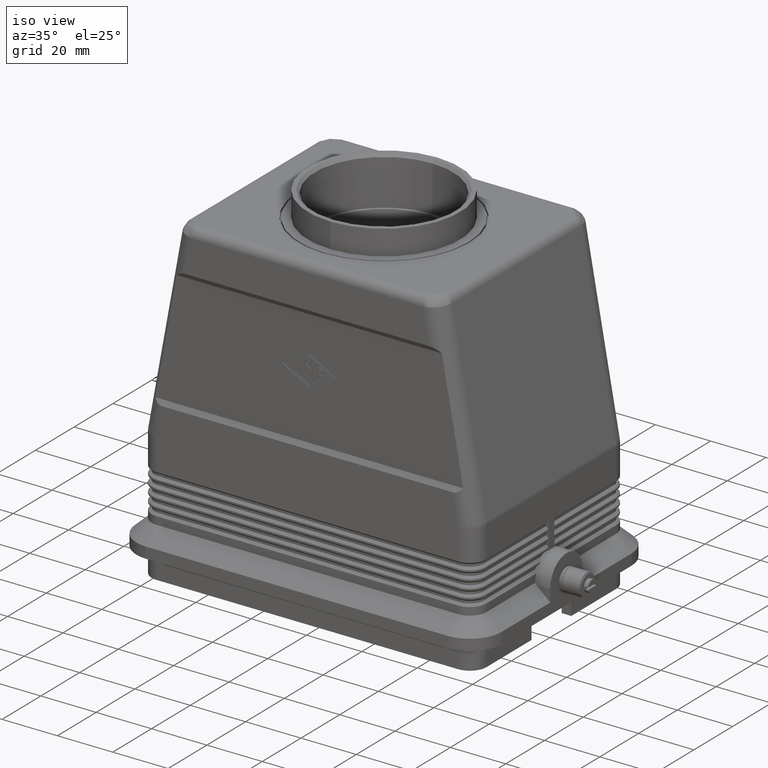
[diagram: clean part render]
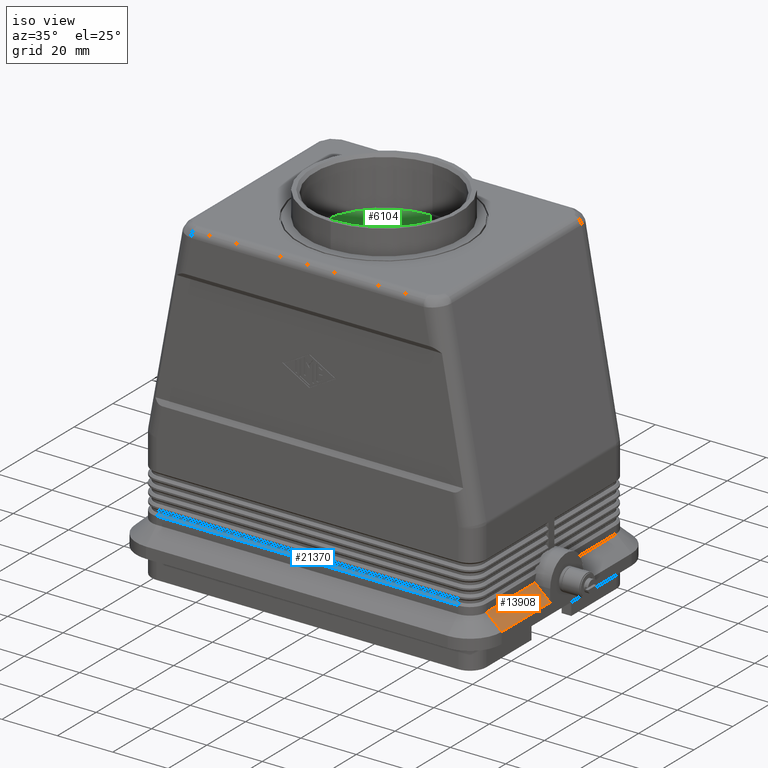
[diagram: same view with three faces highlighted in distinct colors, each labeled with its STEP entity id]
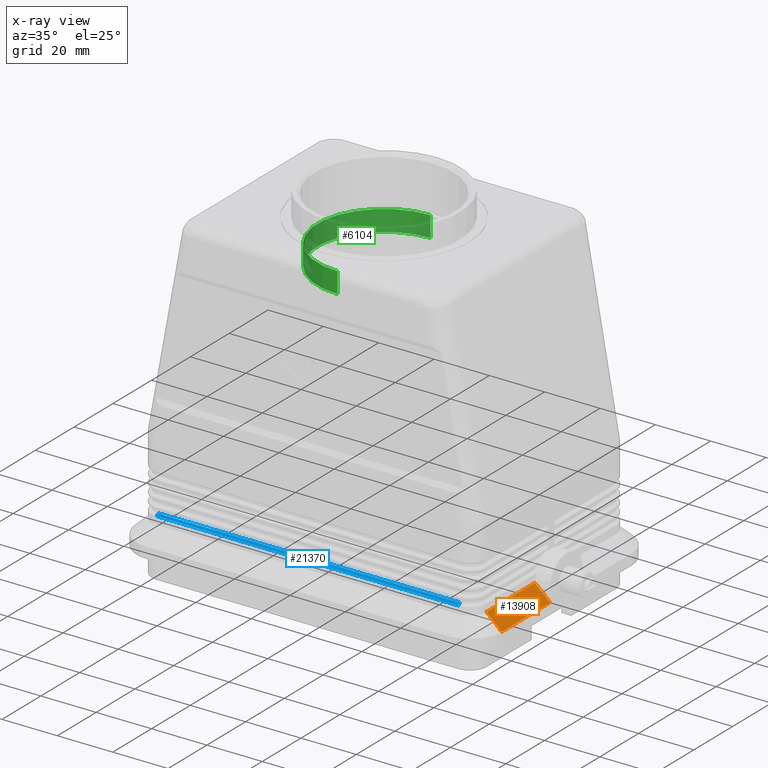
[diagram: x-ray of the same camera — body ghosted, the three highlighted faces saturated]
A machine part, iso view with three faces highlighted in distinct colors.
The next image is the same camera in x-ray (body ghosted, the three faces saturated) — at least one of them is partly hidden behind the body in this view.
Their STEP definitions:

[orange] entity #13908 — the highlighted planar face has unit normal (0.6727, 0, 0.7399).
#13751=CARTESIAN_POINT('',(60.500000000000007,-8.485281374238570,18.000000000000004));
#13752=VERTEX_POINT('',#13751);
#13760=CARTESIAN_POINT('',(61.050000000000004,-8.499999999999998,17.500000000000000));
#13761=VERTEX_POINT('',#13760);
#13762=CARTESIAN_POINT('',(61.050000000000004,0.0,17.500000000000000));
#13763=DIRECTION('',(-0.672672793996313,0.0,-0.739940073395943));
#13764=DIRECTION('',(-0.739940073395943,0.0,0.672672793996313));
#13765=AXIS2_PLACEMENT_3D('',#13762,#13763,#13764);
#13766=ELLIPSE('',#13765,12.636158435220718,8.499999999999998);
#13767=EDGE_CURVE('',#13761,#13752,#13766,.T.);
#13818=CARTESIAN_POINT('',(66.0,-8.499999999999996,13.0));
#13819=VERTEX_POINT('',#13818);
#13820=CARTESIAN_POINT('',(66.0,-8.499999999999996,13.0));
#13821=DIRECTION('',(-0.739940073395943,-2.655349E-016,0.672672793996313));
#13822=VECTOR('',#13821,6.689730936293324);
#13823=LINE('',#13820,#13822);
#13824=EDGE_CURVE('',#13819,#13761,#13823,.T.);
#13877=CARTESIAN_POINT('',(66.0,-33.500000000000000,13.0));
#13878=DIRECTION('',(0.672672793996313,0.0,0.739940073395943));
#13879=DIRECTION('',(0.739940073395943,0.0,-0.672672793996313));
#13880=AXIS2_PLACEMENT_3D('',#13877,#13878,#13879);
#13881=PLANE('',#13880);
#13882=ORIENTED_EDGE('',*,*,#13824,.T.);
#13883=ORIENTED_EDGE('',*,*,#13767,.T.);
#13884=CARTESIAN_POINT('',(60.500000000000028,-33.500000000000000,18.0));
#13885=VERTEX_POINT('',#13884);
#13886=CARTESIAN_POINT('',(60.500000000000028,-33.500000000000000,18.0));
#13887=DIRECTION('',(0.0,1.0,0.0));
#13888=VECTOR('',#13887,25.014718625761432);
#13889=LINE('',#13886,#13888);
#13890=EDGE_CURVE('',#13885,#13752,#13889,.T.);
#13891=ORIENTED_EDGE('',*,*,#13890,.F.);
#13892=CARTESIAN_POINT('',(66.0,-33.500000000000000,13.0));
#13893=VERTEX_POINT('',#13892);
#13894=CARTESIAN_POINT('',(66.0,-33.500000000000000,13.0));
#13895=DIRECTION('',(-0.739940073395942,0.0,0.672672793996314));
#13896=VECTOR('',#13895,7.433034373659232);
#13897=LINE('',#13894,#13896);
#13898=EDGE_CURVE('',#13893,#13885,#13897,.T.);
#13899=ORIENTED_EDGE('',*,*,#13898,.F.);
#13900=CARTESIAN_POINT('',(66.0,-33.500000000000000,13.0));
#13901=DIRECTION('',(0.0,1.0,0.0));
#13902=VECTOR('',#13901,25.000000000000004);
#13903=LINE('',#13900,#13902);
#13904=EDGE_CURVE('',#13893,#13819,#13903,.T.);
#13905=ORIENTED_EDGE('',*,*,#13904,.T.);
#13906=EDGE_LOOP('',(#13882,#13883,#13891,#13899,#13905));
#13907=FACE_OUTER_BOUND('',#13906,.T.);
#13908=ADVANCED_FACE('',(#13907),#13881,.T.);

[blue] entity #21370 — the highlighted planar face has unit normal (0, -0.7071, 0.7071).
#774=CARTESIAN_POINT('',(-54.500000000000014,-39.500000000000000,20.800000000000004));
#775=VERTEX_POINT('',#774);
#891=CARTESIAN_POINT('',(54.500000000000014,-39.500000000000000,20.800000000000004));
#892=VERTEX_POINT('',#891);
#971=CARTESIAN_POINT('',(54.500000000000014,-38.800000000000011,21.500000000000004));
#972=VERTEX_POINT('',#971);
#980=CARTESIAN_POINT('',(54.500000000000014,-39.500000000000000,20.800000000000004));
#981=DIRECTION('',(0.0,0.707106781186542,0.707106781186553));
#982=VECTOR('',#981,0.989949493661158);
#983=LINE('',#980,#982);
#984=EDGE_CURVE('',#892,#972,#983,.T.);
#12163=CARTESIAN_POINT('',(-54.500000000000014,-38.800000000000011,21.500000000000004));
#12164=VERTEX_POINT('',#12163);
#12172=CARTESIAN_POINT('',(54.500000000000014,-38.800000000000011,21.500000000000004));
#12173=DIRECTION('',(-1.0,0.0,0.0));
#12174=VECTOR('',#12173,109.000000000000030);
#12175=LINE('',#12172,#12174);
#12176=EDGE_CURVE('',#972,#12164,#12175,.T.);
#21349=CARTESIAN_POINT('',(-3.762668E-016,-39.150000000000006,21.150000000000002));
#21350=DIRECTION('',(2.707342E-032,-0.707106781186550,0.707106781186545));
#21351=DIRECTION('',(1.0,0.0,0.0));
#21352=AXIS2_PLACEMENT_3D('',#21349,#21350,#21351);
#21353=PLANE('',#21352);
#21354=ORIENTED_EDGE('',*,*,#984,.T.);
#21355=ORIENTED_EDGE('',*,*,#12176,.T.);
#21356=CARTESIAN_POINT('',(-54.500000000000014,-38.800000000000011,21.500000000000004));
#21357=DIRECTION('',(0.0,-0.707106781186542,-0.707106781186553));
#21358=VECTOR('',#21357,0.989949493661158);
#21359=LINE('',#21356,#21358);
#21360=EDGE_CURVE('',#12164,#775,#21359,.T.);
#21361=ORIENTED_EDGE('',*,*,#21360,.T.);
#21362=CARTESIAN_POINT('',(-54.500000000000014,-39.500000000000000,20.800000000000004));
#21363=DIRECTION('',(1.0,0.0,0.0));
#21364=VECTOR('',#21363,109.000000000000030);
#21365=LINE('',#21362,#21364);
#21366=EDGE_CURVE('',#775,#892,#21365,.T.);
#21367=ORIENTED_EDGE('',*,*,#21366,.T.);
#21368=EDGE_LOOP('',(#21354,#21355,#21361,#21367));
#21369=FACE_OUTER_BOUND('',#21368,.T.);
#21370=ADVANCED_FACE('',(#21369),#21353,.T.);

[green] entity #6104 — the highlighted cylindrical surface (partial cylindrical patch) has radius 24 mm, axis along (0, 0, -1).
#6063=CARTESIAN_POINT('',(0.0,0.0,105.750000000000010));
#6064=DIRECTION('',(0.0,0.0,-1.0));
#6065=DIRECTION('',(0.0,1.0,0.0));
#6066=AXIS2_PLACEMENT_3D('',#6063,#6064,#6065);
#6067=CYLINDRICAL_SURFACE('',#6066,24.0);
#6068=CARTESIAN_POINT('',(0.0,24.0,109.500000000000010));
#6069=VERTEX_POINT('',#6068);
#6070=CARTESIAN_POINT('',(0.0,24.0,102.000000000000010));
#6071=VERTEX_POINT('',#6070);
#6072=CARTESIAN_POINT('',(0.0,24.0,109.500000000000010));
#6073=DIRECTION('',(0.0,0.0,-1.0));
#6074=VECTOR('',#6073,7.500000000000000);
#6075=LINE('',#6072,#6074);
#6076=EDGE_CURVE('',#6069,#6071,#6075,.T.);
#6077=ORIENTED_EDGE('',*,*,#6076,.F.);
#6078=CARTESIAN_POINT('',(2.939055E-015,-24.0,109.500000000000010));
#6079=VERTEX_POINT('',#6078);
#6080=CARTESIAN_POINT('',(0.0,0.0,109.500000000000010));
#6081=DIRECTION('',(0.0,0.0,-1.0));
#6082=DIRECTION('',(0.0,1.0,0.0));
#6083=AXIS2_PLACEMENT_3D('',#6080,#6081,#6082);
#6084=CIRCLE('',#6083,24.0);
#6085=EDGE_CURVE('',#6079,#6069,#6084,.T.);
#6086=ORIENTED_EDGE('',*,*,#6085,.F.);
#6087=CARTESIAN_POINT('',(2.939055E-015,-24.0,102.000000000000010));
#6088=VERTEX_POINT('',#6087);
#6089=CARTESIAN_POINT('',(2.939055E-015,-24.0,102.000000000000010));
#6090=DIRECTION('',(0.0,0.0,1.0));
#6091=VECTOR('',#6090,7.500000000000000);
#6092=LINE('',#6089,#6091);
#6093=EDGE_CURVE('',#6088,#6079,#6092,.T.);
#6094=ORIENTED_EDGE('',*,*,#6093,.F.);
#6095=CARTESIAN_POINT('',(0.0,0.0,102.000000000000010));
#6096=DIRECTION('',(0.0,0.0,-1.0));
#6097=DIRECTION('',(0.0,1.0,0.0));
#6098=AXIS2_PLACEMENT_3D('',#6095,#6096,#6097);
#6099=CIRCLE('',#6098,24.0);
#6100=EDGE_CURVE('',#6088,#6071,#6099,.T.);
#6101=ORIENTED_EDGE('',*,*,#6100,.T.);
#6102=EDGE_LOOP('',(#6077,#6086,#6094,#6101));
#6103=FACE_OUTER_BOUND('',#6102,.T.);
#6104=ADVANCED_FACE('',(#6103),#6067,.F.);